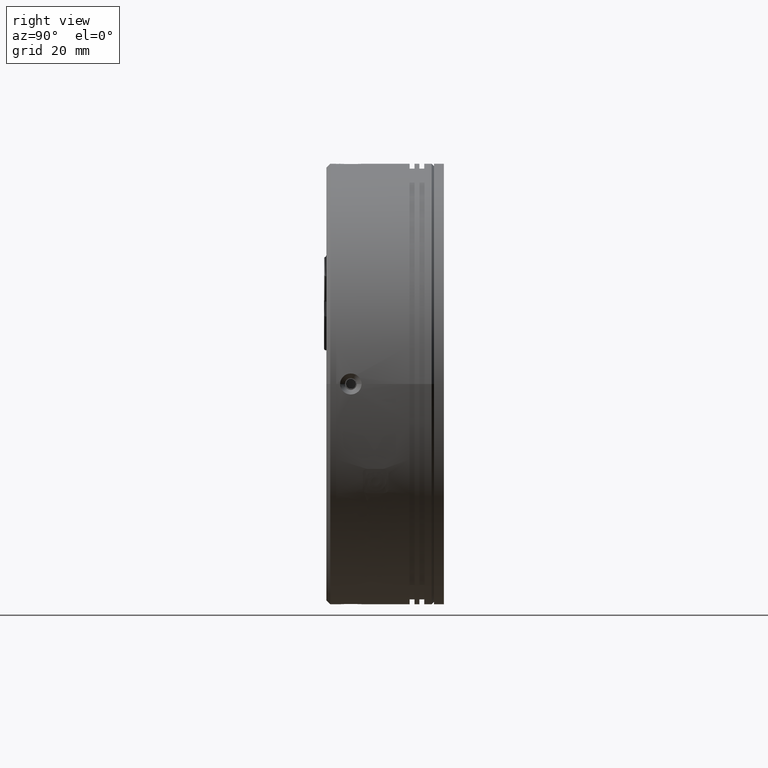
[diagram: clean part render]
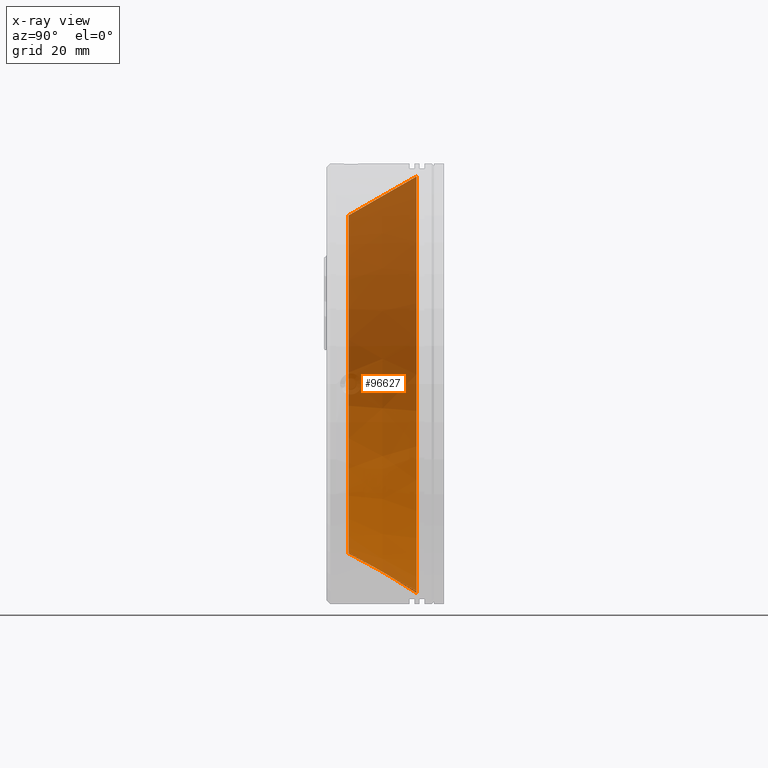
[diagram: x-ray — body ghosted, one internal face saturated and labeled with its STEP entity id]
A machine part, right view, then the same camera in x-ray: the body is ghosted and one INTERNAL B-rep face — a face not visible from any outside direction — is saturated and labeled: STEP entity #96627.
In plain terms, the highlighted conical surface has half-angle 30 deg.
Its self-contained STEP definition (entity closure, byte-faithful):
#679 = CIRCLE ( 'NONE', #84307, 42.74019237886468400 ) ;
#3207 = DIRECTION ( 'NONE',  ( 0.9917426836413946200, 0.0000000000000000000, 0.1282437111275429900 ) ) ;
#3633 = CARTESIAN_POINT ( 'NONE',  ( -14.10448841035362700, 23.38001079608988100, 42.38727308916474400 ) ) ;
#10411 = DIRECTION ( 'NONE',  ( 0.0000000000000000000, -1.000000000000000000, 0.0000000000000000000 ) ) ;
#10652 = CIRCLE ( 'NONE', #55100, 42.74019237886468400 ) ;
#11678 = VECTOR ( 'NONE', #50774, 1000.000000000000100 ) ;
#14222 = CARTESIAN_POINT ( 'NONE',  ( -3.142166640412148700, 23.38001079608988800, -42.38727308916474400 ) ) ;
#17635 = CIRCLE ( 'NONE', #69475, 34.74019237886468400 ) ;
#19041 = CONICAL_SURFACE ( 'NONE', #85964, 42.74019237886468400, 0.5235987755983000400 ) ;
#24001 = DIRECTION ( 'NONE',  ( 0.06412185556377167400, 0.8660254037844380400, -0.4958713418206983100 ) ) ;
#28790 = CARTESIAN_POINT ( 'NONE',  ( -51.01060061454764100, 23.38001079608988100, -5.481160884970734100 ) ) ;
#31024 = DIRECTION ( 'NONE',  ( 0.0000000000000000000, -1.000000000000000000, 0.0000000000000000000 ) ) ;
#31177 = FACE_OUTER_BOUND ( 'NONE', #104691, .T. ) ;
#31871 = CARTESIAN_POINT ( 'NONE',  ( -4.168116329432494100, 9.523604335538905700, -34.45333162003358000 ) ) ;
#34802 = AXIS2_PLACEMENT_3D ( 'NONE', #115726, #57690, #125436 ) ;
#37872 = ORIENTED_EDGE ( 'NONE', *, *, #44584, .F. ) ;
#40982 = VERTEX_POINT ( 'NONE', #108740 ) ;
#42367 = VERTEX_POINT ( 'NONE', #31871 ) ;
#44535 = DIRECTION ( 'NONE',  ( -0.1282437111275429600, -8.117527691965372500E-017, 0.9917426836413946200 ) ) ;
#44584 = EDGE_CURVE ( 'NONE', #40982, #57118, #114712, .T. ) ;
#44754 = CARTESIAN_POINT ( 'NONE',  ( -43.07665914541648500, 9.523604335538907500, -4.455211195950393100 ) ) ;
#46235 = EDGE_CURVE ( 'NONE', #89317, #73975, #679, .T. ) ;
#50774 = DIRECTION ( 'NONE',  ( -0.06412185556377160400, 0.8660254037844379300, 0.4958713418206983600 ) ) ;
#55100 = AXIS2_PLACEMENT_3D ( 'NONE', #68406, #10411, #78078 ) ;
#57118 = VERTEX_POINT ( 'NONE', #3633 ) ;
#57690 = DIRECTION ( 'NONE',  ( 0.0000000000000000000, -1.000000000000000000, 0.0000000000000000000 ) ) ;
#61085 = DIRECTION ( 'NONE',  ( 0.0000000000000000000, -1.000000000000000000, 0.0000000000000000000 ) ) ;
#63494 = CARTESIAN_POINT ( 'NONE',  ( -8.623327525382890700, 23.38001079608988400, -3.306816626080788500E-015 ) ) ;
#68406 = CARTESIAN_POINT ( 'NONE',  ( -8.623327525382890700, 23.38001079608988100, -3.306816626080788500E-015 ) ) ;
#69475 = AXIS2_PLACEMENT_3D ( 'NONE', #119140, #61085, #3207 ) ;
#69671 = ORIENTED_EDGE ( 'NONE', *, *, #74521, .T. ) ;
#70501 = ORIENTED_EDGE ( 'NONE', *, *, #116091, .T. ) ;
#73975 = VERTEX_POINT ( 'NONE', #85665 ) ;
#74421 = LINE ( 'NONE', #14222, #122916 ) ;
#74521 = EDGE_CURVE ( 'NONE', #89681, #42367, #105516, .T. ) ;
#78078 = DIRECTION ( 'NONE',  ( 0.9917426836413946200, 0.0000000000000000000, 0.1282437111275429600 ) ) ;
#84307 = AXIS2_PLACEMENT_3D ( 'NONE', #88869, #31024, #98628 ) ;
#84678 = EDGE_CURVE ( 'NONE', #57118, #89317, #10652, .T. ) ;
#85665 = CARTESIAN_POINT ( 'NONE',  ( -3.142166640412149500, 23.38001079608988100, -42.38727308916473600 ) ) ;
#85964 = AXIS2_PLACEMENT_3D ( 'NONE', #63494, #111775, #44535 ) ;
#86102 = ORIENTED_EDGE ( 'NONE', *, *, #101439, .T. ) ;
#88869 = CARTESIAN_POINT ( 'NONE',  ( -8.623327525382890700, 23.38001079608988100, -3.306816626080788500E-015 ) ) ;
#89317 = VERTEX_POINT ( 'NONE', #28790 ) ;
#89681 = VERTEX_POINT ( 'NONE', #44754 ) ;
#96627 = ADVANCED_FACE ( 'NONE', ( #31177 ), #19041, .F. ) ;
#98628 = DIRECTION ( 'NONE',  ( 0.9917426836413946200, 0.0000000000000000000, 0.1282437111275429600 ) ) ;
#99009 = CARTESIAN_POINT ( 'NONE',  ( -14.10448841035362700, 23.38001079608988100, 42.38727308916474400 ) ) ;
#101439 = EDGE_CURVE ( 'NONE', #42367, #73975, #74421, .T. ) ;
#102749 = ORIENTED_EDGE ( 'NONE', *, *, #46235, .F. ) ;
#104691 = EDGE_LOOP ( 'NONE', ( #70501, #69671, #86102, #102749, #122294, #37872 ) ) ;
#105516 = CIRCLE ( 'NONE', #34802, 34.74019237886468400 ) ;
#108740 = CARTESIAN_POINT ( 'NONE',  ( -13.07853872133328100, 9.523604335538909300, 34.45333162003358000 ) ) ;
#111775 = DIRECTION ( 'NONE',  ( -5.205109381991191200E-018, 1.000000000000000000, 4.025249348881539100E-017 ) ) ;
#114712 = LINE ( 'NONE', #99009, #11678 ) ;
#115726 = CARTESIAN_POINT ( 'NONE',  ( -8.623327525382890700, 9.523604335538907500, -3.306816626080788500E-015 ) ) ;
#116091 = EDGE_CURVE ( 'NONE', #40982, #89681, #17635, .T. ) ;
#119140 = CARTESIAN_POINT ( 'NONE',  ( -8.623327525382890700, 9.523604335538907500, -3.306816626080788500E-015 ) ) ;
#122294 = ORIENTED_EDGE ( 'NONE', *, *, #84678, .F. ) ;
#122916 = VECTOR ( 'NONE', #24001, 1000.000000000000000 ) ;
#125436 = DIRECTION ( 'NONE',  ( 0.9917426836413946200, 0.0000000000000000000, 0.1282437111275429900 ) ) ;